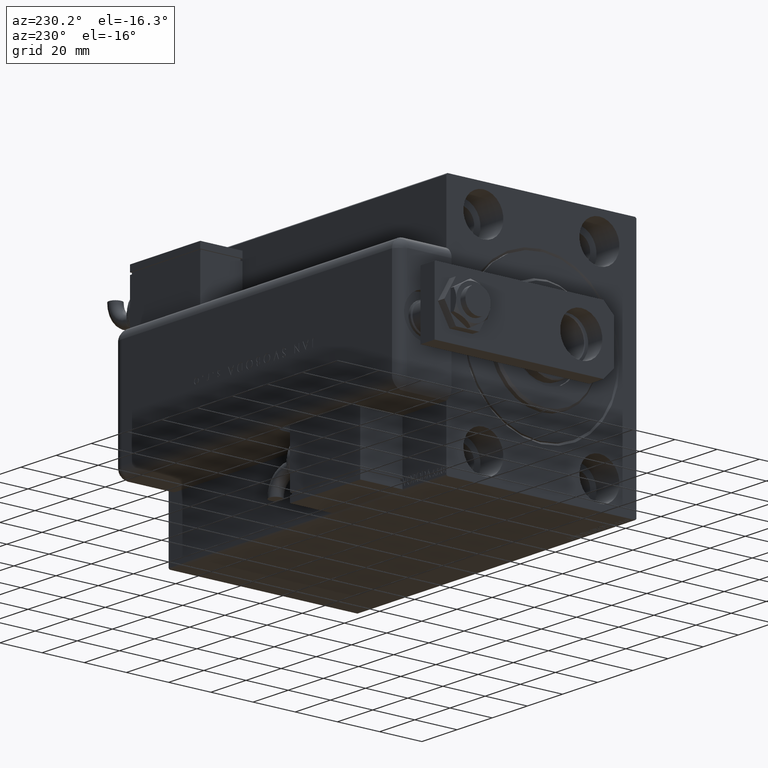
[diagram: clean part render]
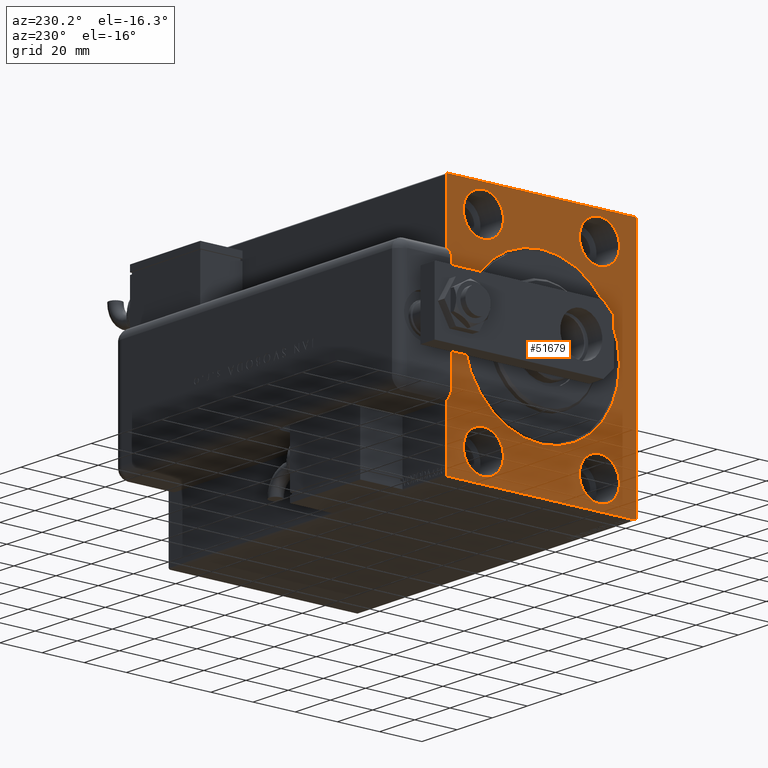
[diagram: same view with one face highlighted and labeled with its STEP entity id]
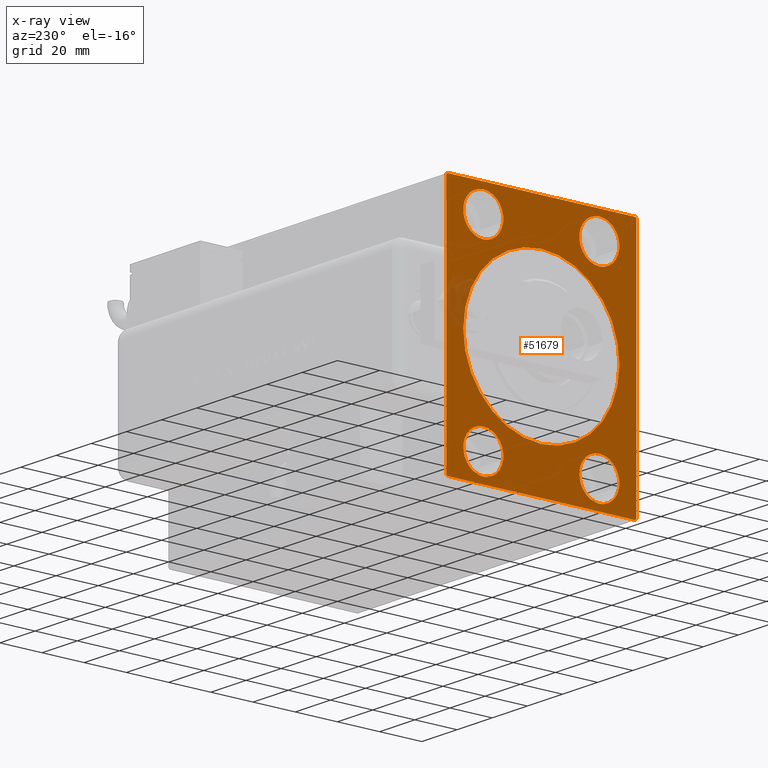
[diagram: x-ray of the same camera — body ghosted, the highlighted face saturated]
A machine part, auxiliary view. The second image highlights one B-rep face of the part: STEP entity #51679.
The next image is the same camera in x-ray: the body ghosted, the highlighted face saturated — about 4% of this face is hidden behind the body in this view.
In plain terms, the highlighted planar face has unit normal (1, 0, 0).
Its self-contained STEP definition (entity closure, byte-faithful):
#829 = VERTEX_POINT ( 'NONE', #17476 ) ;
#946 = DIRECTION ( 'NONE',  ( 1.000000000000000000, 0.000000000000000000, 0.000000000000000000 ) ) ;
#2503 = ORIENTED_EDGE ( 'NONE', *, *, #20829, .T. ) ;
#3756 = CARTESIAN_POINT ( 'NONE',  ( 0.000000000000000000, -45.00000000000000000, 56.99999999999999289 ) ) ;
#3908 = VECTOR ( 'NONE', #49781, 1000.000000000000000 ) ;
#3966 = DIRECTION ( 'NONE',  ( 0.000000000000000000, 0.000000000000000000, -1.000000000000000000 ) ) ;
#4638 = ORIENTED_EDGE ( 'NONE', *, *, #52599, .T. ) ;
#4729 = VERTEX_POINT ( 'NONE', #43961 ) ;
#4870 = CARTESIAN_POINT ( 'NONE',  ( 0.000000000000000000, 0.000000000000000000, 37.00000000000003553 ) ) ;
#4884 = DIRECTION ( 'NONE',  ( -1.000000000000000000, 0.000000000000000000, 0.000000000000000000 ) ) ;
#5144 = VERTEX_POINT ( 'NONE', #28489 ) ;
#5178 = DIRECTION ( 'NONE',  ( 0.000000000000000000, 0.000000000000000000, 1.000000000000000000 ) ) ;
#5400 = CIRCLE ( 'NONE', #33353, 9.500000000000001776 ) ;
#5404 = DIRECTION ( 'NONE',  ( 0.000000000000000000, 0.000000000000000000, 1.000000000000000000 ) ) ;
#5468 = CARTESIAN_POINT ( 'NONE',  ( 0.000000000000000000, 27.49999999999998934, -44.99999999999998579 ) ) ;
#5560 = LINE ( 'NONE', #38985, #47991 ) ;
#6162 = EDGE_LOOP ( 'NONE', ( #25298, #31342 ) ) ;
#6421 = DIRECTION ( 'NONE',  ( 0.000000000000000000, 0.000000000000000000, 1.000000000000000000 ) ) ;
#6824 = CARTESIAN_POINT ( 'NONE',  ( 0.000000000000000000, -44.49999999999997158, 57.49999999999999289 ) ) ;
#7217 = EDGE_CURVE ( 'NONE', #17091, #23354, #12991, .T. ) ;
#7669 = CIRCLE ( 'NONE', #56675, 9.500000000000001776 ) ;
#8127 = CARTESIAN_POINT ( 'NONE',  ( 0.000000000000000000, 27.50000000000001066, 35.50000000000000711 ) ) ;
#8953 = AXIS2_PLACEMENT_3D ( 'NONE', #5468, #4884, #5178 ) ;
#9447 = DIRECTION ( 'NONE',  ( -0.000000000000000000, -0.7071067811865474617, 0.7071067811865474617 ) ) ;
#9634 = DIRECTION ( 'NONE',  ( -1.000000000000000000, 0.000000000000000000, 0.000000000000000000 ) ) ;
#9832 = EDGE_CURVE ( 'NONE', #829, #56202, #36422, .T. ) ;
#10317 = ORIENTED_EDGE ( 'NONE', *, *, #34575, .F. ) ;
#11751 = CIRCLE ( 'NONE', #44489, 37.00000000000003553 ) ;
#12235 = CARTESIAN_POINT ( 'NONE',  ( 0.000000000000000000, 45.00000000000000000, 57.00000000000000711 ) ) ;
#12685 = CARTESIAN_POINT ( 'NONE',  ( 0.000000000000000000, 0.000000000000000000, 0.000000000000000000 ) ) ;
#12897 = CARTESIAN_POINT ( 'NONE',  ( 0.000000000000000000, 27.49999999999998934, -35.49999999999998579 ) ) ;
#12991 = LINE ( 'NONE', #44342, #22955 ) ;
#13518 = EDGE_CURVE ( 'NONE', #58904, #25524, #22171, .T. ) ;
#13520 = CIRCLE ( 'NONE', #40490, 9.500000000000001776 ) ;
#13613 = DIRECTION ( 'NONE',  ( 0.000000000000000000, 0.000000000000000000, -1.000000000000000000 ) ) ;
#13690 = VECTOR ( 'NONE', #9447, 1000.000000000000114 ) ;
#14565 = DIRECTION ( 'NONE',  ( 0.000000000000000000, 0.000000000000000000, 1.000000000000000000 ) ) ;
#15523 = EDGE_CURVE ( 'NONE', #18957, #5144, #50472, .T. ) ;
#16261 = VERTEX_POINT ( 'NONE', #12897 ) ;
#16564 = ORIENTED_EDGE ( 'NONE', *, *, #13518, .F. ) ;
#16614 = DIRECTION ( 'NONE',  ( 1.000000000000000000, 0.000000000000000000, 0.000000000000000000 ) ) ;
#17007 = EDGE_LOOP ( 'NONE', ( #33340, #26757 ) ) ;
#17091 = VERTEX_POINT ( 'NONE', #26754 ) ;
#17281 = AXIS2_PLACEMENT_3D ( 'NONE', #37467, #55845, #14565 ) ;
#17313 = LINE ( 'NONE', #3756, #53194 ) ;
#17476 = CARTESIAN_POINT ( 'NONE',  ( 0.000000000000000000, 4.531193156845210737E-15, -37.00000000000003553 ) ) ;
#17744 = CARTESIAN_POINT ( 'NONE',  ( 0.000000000000000000, 45.00000000000001421, -57.00000000000003553 ) ) ;
#17902 = FACE_BOUND ( 'NONE', #52566, .T. ) ;
#18444 = EDGE_CURVE ( 'NONE', #31084, #43242, #35198, .T. ) ;
#18484 = DIRECTION ( 'NONE',  ( -1.000000000000000000, 0.000000000000000000, 0.000000000000000000 ) ) ;
#18564 = CARTESIAN_POINT ( 'NONE',  ( 0.000000000000000000, 45.00000000000001421, -57.00000000000003553 ) ) ;
#18806 = DIRECTION ( 'NONE',  ( 0.000000000000000000, 0.000000000000000000, 1.000000000000000000 ) ) ;
#18957 = VERTEX_POINT ( 'NONE', #33718 ) ;
#19114 = VERTEX_POINT ( 'NONE', #40324 ) ;
#19394 = EDGE_CURVE ( 'NONE', #5144, #18957, #5400, .T. ) ;
#19406 = DIRECTION ( 'NONE',  ( -1.000000000000000000, 0.000000000000000000, 0.000000000000000000 ) ) ;
#20829 = EDGE_CURVE ( 'NONE', #51385, #25524, #59013, .T. ) ;
#22171 = LINE ( 'NONE', #49566, #46881 ) ;
#22301 = AXIS2_PLACEMENT_3D ( 'NONE', #54634, #54341, #36271 ) ;
#22955 = VECTOR ( 'NONE', #3966, 1000.000000000000000 ) ;
#23016 = LINE ( 'NONE', #32356, #13690 ) ;
#23233 = ORIENTED_EDGE ( 'NONE', *, *, #58300, .F. ) ;
#23354 = VERTEX_POINT ( 'NONE', #40979 ) ;
#24108 = FACE_BOUND ( 'NONE', #54560, .T. ) ;
#24302 = AXIS2_PLACEMENT_3D ( 'NONE', #55420, #9634, #5404 ) ;
#24477 = CARTESIAN_POINT ( 'NONE',  ( 0.000000000000000000, -27.49999999999998934, 45.00000000000000711 ) ) ;
#24526 = CARTESIAN_POINT ( 'NONE',  ( 0.000000000000000000, 27.50000000000001066, 45.00000000000000711 ) ) ;
#24627 = AXIS2_PLACEMENT_3D ( 'NONE', #47405, #19406, #6421 ) ;
#25298 = ORIENTED_EDGE ( 'NONE', *, *, #19394, .F. ) ;
#25524 = VERTEX_POINT ( 'NONE', #33044 ) ;
#25550 = VERTEX_POINT ( 'NONE', #6824 ) ;
#25758 = DIRECTION ( 'NONE',  ( -0.000000000000000000, 0.7071067811865474617, 0.7071067811865474617 ) ) ;
#26331 = CARTESIAN_POINT ( 'NONE',  ( 0.000000000000000000, -27.49999999999998934, 54.50000000000000711 ) ) ;
#26754 = CARTESIAN_POINT ( 'NONE',  ( 0.000000000000000000, -45.00000000000000000, 56.99999999999999289 ) ) ;
#26757 = ORIENTED_EDGE ( 'NONE', *, *, #9832, .T. ) ;
#26956 = PLANE ( 'NONE',  #22301 ) ;
#28001 = EDGE_CURVE ( 'NONE', #16261, #36126, #28840, .T. ) ;
#28489 = CARTESIAN_POINT ( 'NONE',  ( 0.000000000000000000, -27.50000000000000000, -35.49999999999998579 ) ) ;
#28840 = CIRCLE ( 'NONE', #17281, 9.500000000000001776 ) ;
#29046 = DIRECTION ( 'NONE',  ( -1.000000000000000000, 0.000000000000000000, 0.000000000000000000 ) ) ;
#29117 = CIRCLE ( 'NONE', #24302, 9.500000000000001776 ) ;
#29631 = LINE ( 'NONE', #47992, #3908 ) ;
#29691 = EDGE_CURVE ( 'NONE', #4729, #25550, #5560, .T. ) ;
#30902 = DIRECTION ( 'NONE',  ( 0.000000000000000000, 1.000000000000000000, 0.000000000000000000 ) ) ;
#31084 = VERTEX_POINT ( 'NONE', #41949 ) ;
#31342 = ORIENTED_EDGE ( 'NONE', *, *, #15523, .F. ) ;
#31460 = FACE_BOUND ( 'NONE', #44363, .T. ) ;
#31947 = EDGE_CURVE ( 'NONE', #34577, #19114, #7669, .T. ) ;
#32356 = CARTESIAN_POINT ( 'NONE',  ( 0.000000000000000000, -44.50000000000002842, -57.50000000000000711 ) ) ;
#32417 = CARTESIAN_POINT ( 'NONE',  ( 0.000000000000000000, 27.49999999999998934, -54.49999999999998579 ) ) ;
#33044 = CARTESIAN_POINT ( 'NONE',  ( 0.000000000000000000, 44.50000000000001421, -57.50000000000000711 ) ) ;
#33340 = ORIENTED_EDGE ( 'NONE', *, *, #38303, .T. ) ;
#33353 = AXIS2_PLACEMENT_3D ( 'NONE', #46222, #41699, #18806 ) ;
#33718 = CARTESIAN_POINT ( 'NONE',  ( 0.000000000000000000, -27.50000000000000000, -54.49999999999998579 ) ) ;
#34055 = ORIENTED_EDGE ( 'NONE', *, *, #7217, .F. ) ;
#34519 = AXIS2_PLACEMENT_3D ( 'NONE', #12685, #16614, #34990 ) ;
#34575 = EDGE_CURVE ( 'NONE', #51385, #38799, #29631, .T. ) ;
#34577 = VERTEX_POINT ( 'NONE', #26331 ) ;
#34990 = DIRECTION ( 'NONE',  ( 0.000000000000000000, 0.000000000000000000, -1.000000000000000000 ) ) ;
#35198 = CIRCLE ( 'NONE', #40022, 9.500000000000001776 ) ;
#36126 = VERTEX_POINT ( 'NONE', #32417 ) ;
#36271 = DIRECTION ( 'NONE',  ( 0.000000000000000000, 0.000000000000000000, -1.000000000000000000 ) ) ;
#36422 = CIRCLE ( 'NONE', #34519, 37.00000000000003553 ) ;
#37467 = CARTESIAN_POINT ( 'NONE',  ( 0.000000000000000000, 27.49999999999998934, -44.99999999999998579 ) ) ;
#38303 = EDGE_CURVE ( 'NONE', #56202, #829, #11751, .T. ) ;
#38674 = DIRECTION ( 'NONE',  ( 0.000000000000000000, 0.000000000000000000, 1.000000000000000000 ) ) ;
#38692 = ORIENTED_EDGE ( 'NONE', *, *, #48718, .F. ) ;
#38799 = VERTEX_POINT ( 'NONE', #12235 ) ;
#38985 = CARTESIAN_POINT ( 'NONE',  ( 0.000000000000000000, 45.00000000000000000, 57.50000000000000711 ) ) ;
#39048 = ORIENTED_EDGE ( 'NONE', *, *, #31947, .F. ) ;
#40022 = AXIS2_PLACEMENT_3D ( 'NONE', #24526, #29046, #38674 ) ;
#40324 = CARTESIAN_POINT ( 'NONE',  ( 0.000000000000000000, -27.49999999999998934, 35.50000000000000711 ) ) ;
#40490 = AXIS2_PLACEMENT_3D ( 'NONE', #43993, #49100, #44297 ) ;
#40979 = CARTESIAN_POINT ( 'NONE',  ( 0.000000000000000000, -45.00000000000000000, -57.00000000000003553 ) ) ;
#41024 = ORIENTED_EDGE ( 'NONE', *, *, #58517, .F. ) ;
#41548 = EDGE_CURVE ( 'NONE', #17091, #25550, #17313, .T. ) ;
#41699 = DIRECTION ( 'NONE',  ( -1.000000000000000000, 0.000000000000000000, 0.000000000000000000 ) ) ;
#41949 = CARTESIAN_POINT ( 'NONE',  ( 0.000000000000000000, 27.50000000000001066, 54.50000000000000711 ) ) ;
#42550 = DIRECTION ( 'NONE',  ( 0.000000000000000000, 0.000000000000000000, 1.000000000000000000 ) ) ;
#43242 = VERTEX_POINT ( 'NONE', #8127 ) ;
#43772 = ORIENTED_EDGE ( 'NONE', *, *, #29691, .F. ) ;
#43961 = CARTESIAN_POINT ( 'NONE',  ( 0.000000000000000000, 44.50000000000002842, 57.50000000000000711 ) ) ;
#43993 = CARTESIAN_POINT ( 'NONE',  ( 0.000000000000000000, 27.50000000000001066, 45.00000000000000711 ) ) ;
#44297 = DIRECTION ( 'NONE',  ( 0.000000000000000000, 0.000000000000000000, 1.000000000000000000 ) ) ;
#44342 = CARTESIAN_POINT ( 'NONE',  ( 0.000000000000000000, -45.00000000000000000, 57.49999999999999289 ) ) ;
#44363 = EDGE_LOOP ( 'NONE', ( #56513, #38692 ) ) ;
#44368 = CARTESIAN_POINT ( 'NONE',  ( 0.000000000000000000, 0.000000000000000000, 0.000000000000000000 ) ) ;
#44489 = AXIS2_PLACEMENT_3D ( 'NONE', #44368, #946, #13613 ) ;
#45323 = FACE_OUTER_BOUND ( 'NONE', #54384, .T. ) ;
#45453 = DIRECTION ( 'NONE',  ( 0.000000000000000000, -0.7071067811865474617, -0.7071067811865474617 ) ) ;
#45850 = CARTESIAN_POINT ( 'NONE',  ( 0.000000000000000000, 44.50000000000002842, 57.50000000000000711 ) ) ;
#46222 = CARTESIAN_POINT ( 'NONE',  ( 0.000000000000000000, -27.50000000000000000, -44.99999999999998579 ) ) ;
#46438 = DIRECTION ( 'NONE',  ( -0.000000000000000000, 0.7071067811865474617, -0.7071067811865474617 ) ) ;
#46881 = VECTOR ( 'NONE', #30902, 1000.000000000000000 ) ;
#47380 = CIRCLE ( 'NONE', #8953, 9.500000000000001776 ) ;
#47405 = CARTESIAN_POINT ( 'NONE',  ( 0.000000000000000000, -27.50000000000000000, -44.99999999999998579 ) ) ;
#47991 = VECTOR ( 'NONE', #48011, 1000.000000000000000 ) ;
#47992 = CARTESIAN_POINT ( 'NONE',  ( 0.000000000000000000, 45.00000000000001421, -57.50000000000000711 ) ) ;
#48011 = DIRECTION ( 'NONE',  ( 0.000000000000000000, -1.000000000000000000, -1.541976423090495387E-16 ) ) ;
#48718 = EDGE_CURVE ( 'NONE', #43242, #31084, #13520, .T. ) ;
#49100 = DIRECTION ( 'NONE',  ( -1.000000000000000000, 0.000000000000000000, 0.000000000000000000 ) ) ;
#49375 = VECTOR ( 'NONE', #46438, 1000.000000000000114 ) ;
#49527 = FACE_BOUND ( 'NONE', #6162, .T. ) ;
#49566 = CARTESIAN_POINT ( 'NONE',  ( 0.000000000000000000, -45.00000000000000000, -57.50000000000000711 ) ) ;
#49781 = DIRECTION ( 'NONE',  ( 0.000000000000000000, -1.206764157201257045E-16, 1.000000000000000000 ) ) ;
#50217 = ORIENTED_EDGE ( 'NONE', *, *, #41548, .T. ) ;
#50472 = CIRCLE ( 'NONE', #24627, 9.500000000000001776 ) ;
#51243 = LINE ( 'NONE', #45850, #49375 ) ;
#51385 = VERTEX_POINT ( 'NONE', #18564 ) ;
#51679 = ADVANCED_FACE ( 'NONE', ( #59173, #24108, #17902, #31460, #49527, #45323 ), #26956, .F. ) ;
#52566 = EDGE_LOOP ( 'NONE', ( #39048, #41024 ) ) ;
#52592 = CARTESIAN_POINT ( 'NONE',  ( 0.000000000000000000, -44.50000000000002842, -57.50000000000000711 ) ) ;
#52599 = EDGE_CURVE ( 'NONE', #58904, #23354, #23016, .T. ) ;
#53194 = VECTOR ( 'NONE', #25758, 1000.000000000000114 ) ;
#53690 = ORIENTED_EDGE ( 'NONE', *, *, #28001, .F. ) ;
#54341 = DIRECTION ( 'NONE',  ( 1.000000000000000000, 0.000000000000000000, 0.000000000000000000 ) ) ;
#54384 = EDGE_LOOP ( 'NONE', ( #34055, #50217, #43772, #57402, #10317, #2503, #16564, #4638 ) ) ;
#54560 = EDGE_LOOP ( 'NONE', ( #53690, #23233 ) ) ;
#54634 = CARTESIAN_POINT ( 'NONE',  ( 0.000000000000000000, 0.000000000000000000, 0.000000000000000000 ) ) ;
#55420 = CARTESIAN_POINT ( 'NONE',  ( 0.000000000000000000, -27.49999999999998934, 45.00000000000000711 ) ) ;
#55845 = DIRECTION ( 'NONE',  ( -1.000000000000000000, 0.000000000000000000, 0.000000000000000000 ) ) ;
#56186 = EDGE_CURVE ( 'NONE', #4729, #38799, #51243, .T. ) ;
#56202 = VERTEX_POINT ( 'NONE', #4870 ) ;
#56472 = VECTOR ( 'NONE', #45453, 1000.000000000000114 ) ;
#56513 = ORIENTED_EDGE ( 'NONE', *, *, #18444, .F. ) ;
#56675 = AXIS2_PLACEMENT_3D ( 'NONE', #24477, #18484, #42550 ) ;
#57402 = ORIENTED_EDGE ( 'NONE', *, *, #56186, .T. ) ;
#58300 = EDGE_CURVE ( 'NONE', #36126, #16261, #47380, .T. ) ;
#58517 = EDGE_CURVE ( 'NONE', #19114, #34577, #29117, .T. ) ;
#58904 = VERTEX_POINT ( 'NONE', #52592 ) ;
#59013 = LINE ( 'NONE', #17744, #56472 ) ;
#59173 = FACE_BOUND ( 'NONE', #17007, .T. ) ;